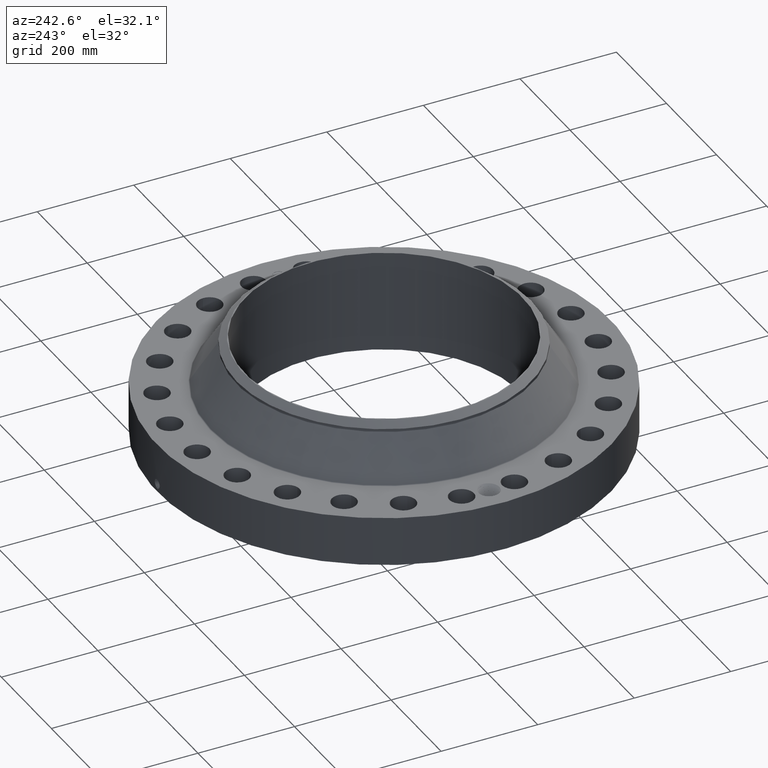
[diagram: clean part render]
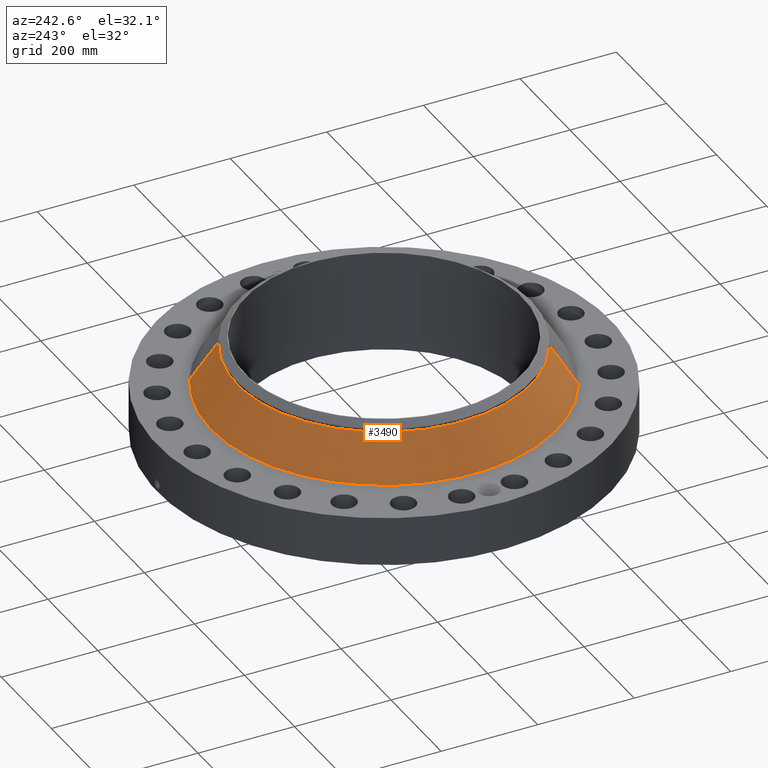
[diagram: same view with one face highlighted and labeled with its STEP entity id]
A machine part, auxiliary view. The second image highlights one B-rep face of the part: STEP entity #3490.
In plain terms, the highlighted conical surface has half-angle 32.809 deg.
Its self-contained STEP definition (entity closure, byte-faithful):
#2858=AXIS2_PLACEMENT_3D('Circle Axis2P3D',#2856,#2857,$) ;
#3451=AXIS2_PLACEMENT_3D('Cone Axis2P3D',#3448,#3449,#3450) ;
#3481=AXIS2_PLACEMENT_3D('Circle Axis2P3D',#3479,#3480,$) ;
#2834=CARTESIAN_POINT('Vertex',(6.75489308198,12.364748848,4.30498001669)) ;
#2841=CARTESIAN_POINT('Vertex',(-6.75489308198,-12.364748848,4.30498001669)) ;
#2856=CARTESIAN_POINT('Axis2P3D Location',(0.,0.,4.30498001669)) ;
#3448=CARTESIAN_POINT('Axis2P3D Location',(0.,0.,7.54627800773)) ;
#3453=CARTESIAN_POINT('Line Origine',(6.25399977263,11.4478697954,5.92562901221)) ;
#3457=CARTESIAN_POINT('Vertex',(5.75310646327,10.5309907427,7.54627800773)) ;
#3464=CARTESIAN_POINT('Vertex',(-5.75310646327,-10.5309907427,7.54627800773)) ;
#3467=CARTESIAN_POINT('Line Origine',(-6.25399977263,-11.4478697954,5.92562901221)) ;
#3479=CARTESIAN_POINT('Axis2P3D Location',(0.,0.,7.54627800773)) ;
#2857=DIRECTION('Axis2P3D Direction',(0.,0.,-0.0393700787402)) ;
#3449=DIRECTION('Axis2P3D Direction',(0.,0.,-0.0393700787402)) ;
#3450=DIRECTION('Axis2P3D XDirection',(-0.0188750212049,-0.0345504945626,0.)) ;
#3454=DIRECTION('Vector Direction',(0.010227113034,0.0187206048374,-0.0330900017153)) ;
#3468=DIRECTION('Vector Direction',(-0.010227113034,-0.0187206048374,-0.0330900017153)) ;
#3480=DIRECTION('Axis2P3D Direction',(0.,0.,-0.0393700787402)) ;
#3455=VECTOR('Line Direction',#3454,0.0393700787402) ;
#3469=VECTOR('Line Direction',#3468,0.0393700787402) ;
#3485=ORIENTED_EDGE('',*,*,#2860,.F.) ;
#3486=ORIENTED_EDGE('',*,*,#3471,.T.) ;
#3487=ORIENTED_EDGE('',*,*,#3483,.T.) ;
#3488=ORIENTED_EDGE('',*,*,#3459,.F.) ;
#3490=ADVANCED_FACE('PartBody',(#3489),#3452,.T.) ;
#2859=CIRCLE('generated circle',#2858,14.0895562252) ;
#3482=CIRCLE('generated circle',#3481,12.) ;
#3452=CONICAL_SURFACE('Cone',#3451,12.,0.572616692114) ;
#2860=EDGE_CURVE('',#2842,#2835,#2859,.T.) ;
#3459=EDGE_CURVE('',#2835,#3458,#3456,.F.) ;
#3471=EDGE_CURVE('',#2842,#3465,#3470,.F.) ;
#3483=EDGE_CURVE('',#3465,#3458,#3482,.T.) ;
#3484=EDGE_LOOP('',(#3485,#3486,#3487,#3488)) ;
#3489=FACE_OUTER_BOUND('',#3484,.T.) ;
#3456=LINE('Line',#3453,#3455) ;
#3470=LINE('Line',#3467,#3469) ;
#2835=VERTEX_POINT('',#2834) ;
#2842=VERTEX_POINT('',#2841) ;
#3458=VERTEX_POINT('',#3457) ;
#3465=VERTEX_POINT('',#3464) ;